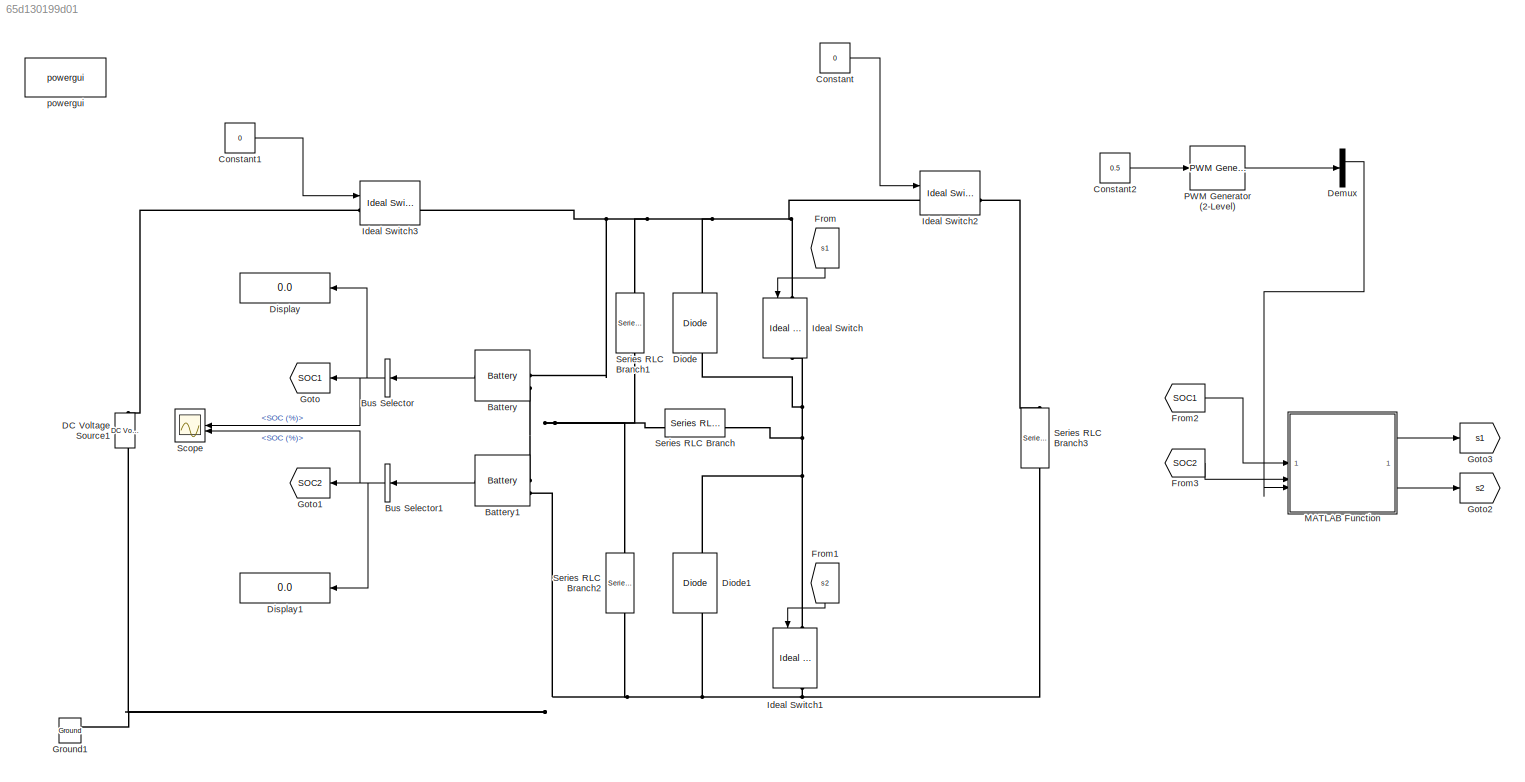
MODEL slx_65d130199d01
KIND model
CONFIG AbsTol = auto
CONFIG EnableMultiTasking = off
CONFIG FixedStep = auto
CONFIG MaxStep = auto
CONFIG MinStep = auto
CONFIG RelTol = 1e-3
CONFIG SampleTimeConstraint = Unconstrained
CONFIG SolverName = VariableStepAuto
CONFIG StartTime = 0.0
CONFIG StopTime = 20.0
BLOCK [Reference] Battery  REF=spsBatteryLib/Battery
  LibrarySourceBlock = sps_lib/Sources/Battery
  SourceBlock = spsBatteryLib/Battery
  SourceType = Battery
BLOCK [Reference] Battery1  REF=spsBatteryLib/Battery
  LibrarySourceBlock = sps_lib/Sources/Battery
  SourceBlock = spsBatteryLib/Battery
  SourceType = Battery
BLOCK [BusSelector] Bus Selector
  NameLocation = top
  OutputSignals = SOC (%)
BLOCK [BusSelector] Bus Selector1
  NameLocation = top
  OutputSignals = SOC (%)
BLOCK [Constant] Constant
  Value = 0
BLOCK [Constant] Constant1
  Value = 0
BLOCK [Constant] Constant2
  Value = 0.5
BLOCK [Reference] DC Voltage Source1  REF=spsDCVoltageSourceLib/DC Voltage Source
  LibrarySourceBlock = sps_lib/Sources/DC Voltage Source
  SourceBlock = spsDCVoltageSourceLib/DC Voltage Source
  SourceType = DC Voltage Source
BLOCK [Demux] Demux
  Outputs = 2
BLOCK [Reference] Diode  REF=spsDiodeLib/Diode
  LibrarySourceBlock = sps_lib/Power Electronics/Diode
  NameLocation = right
  SourceBlock = spsDiodeLib/Diode
  SourceType = Diode
BLOCK [Reference] Diode1  REF=spsDiodeLib/Diode
  LibrarySourceBlock = sps_lib/Power Electronics/Diode
  NameLocation = right
  SourceBlock = spsDiodeLib/Diode
  SourceType = Diode
BLOCK [Display] Display
  Decimation = 1
  NameLocation = top
BLOCK [Display] Display1
  Decimation = 1
  NameLocation = top
BLOCK [From] From
  GotoTag = s1
  NameLocation = left
BLOCK [From] From1
  GotoTag = s2
  NameLocation = left
BLOCK [From] From2
  GotoTag = SOC1
BLOCK [From] From3
  GotoTag = SOC2
BLOCK [Goto] Goto
  GotoTag = SOC1
  NameLocation = top
BLOCK [Goto] Goto1
  GotoTag = SOC2
  NameLocation = top
BLOCK [Goto] Goto2
  GotoTag = s2
BLOCK [Goto] Goto3
  GotoTag = s1
BLOCK [Reference] Ground1  REF=spsGroundLib/Ground
  LibrarySourceBlock = sps_lib/Utilities/Ground
  NameLocation = right
  SourceBlock = spsGroundLib/Ground
  SourceType = Ground
BLOCK [Reference] Ideal Switch  REF=spsIdealSwitchLib/Ideal Switch
  LibrarySourceBlock = sps_lib/Power Electronics/Ideal Switch
  NameLocation = left
  SourceBlock = spsIdealSwitchLib/Ideal Switch
  SourceType = Ideal Switch
BLOCK [Reference] Ideal Switch1  REF=spsIdealSwitchLib/Ideal Switch
  LibrarySourceBlock = sps_lib/Power Electronics/Ideal Switch
  NameLocation = left
  SourceBlock = spsIdealSwitchLib/Ideal Switch
  SourceType = Ideal Switch
BLOCK [Reference] Ideal Switch2  REF=spsIdealSwitchLib/Ideal Switch
  LibrarySourceBlock = sps_lib/Power Electronics/Ideal Switch
  SourceBlock = spsIdealSwitchLib/Ideal Switch
  SourceType = Ideal Switch
BLOCK [Reference] Ideal Switch3  REF=spsIdealSwitchLib/Ideal Switch
  LibrarySourceBlock = sps_lib/Power Electronics/Ideal Switch
  SourceBlock = spsIdealSwitchLib/Ideal Switch
  SourceType = Ideal Switch
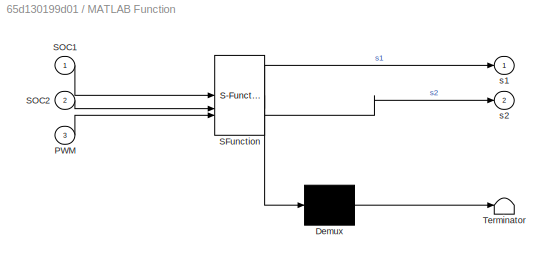
BLOCK [SubSystem] MATLAB Function
  ErrorFcn = Stateflow.Translate.translate
  LibrarySourceBlock = simulink/User-Defined\nFunctions/MATLAB Function
  PermitHierarchicalResolution = ExplicitOnly
  SFBlockType = MATLAB Function
  TreatAsAtomicUnit = on
BLOCK [Demux] MATLAB Function/ Demux 
  Outputs = 1
BLOCK [S-Function] MATLAB Function/ SFunction 
  EnableBusSupport = off
  FunctionName = sf_sfun
  PortCounts = [3 3]
  SFcnIsStateOwnerBlock = off
  SFunctionDeploymentMode = off
  Tag = Stateflow S-Function 2
BLOCK [Terminator] MATLAB Function/ Terminator 
BLOCK [Inport] MATLAB Function/PWM
  Port = 3
BLOCK [Inport] MATLAB Function/SOC1
BLOCK [Inport] MATLAB Function/SOC2
  Port = 2
BLOCK [Outport] MATLAB Function/s1
BLOCK [Outport] MATLAB Function/s2
  Port = 2
BLOCK [Reference] PWM Generator (2-Level)  REF=spsPWMGenerator2LevelLib/PWM Generator
(2-Level)
  LibrarySourceBlock = sps_lib/Power Electronics/Power Electronics Control/PWM Generator\n(2-Level)
  SourceBlock = spsPWMGenerator2LevelLib/PWM Generator\n(2-Level)
  SourceType = PWM Generator (2-Level)
BLOCK [Scope] Scope
  Floating = off
  NameLocation = top
  NumInputPorts = 2
  ScopeSpecificationString = Simulink.scopes.TimeScopeBlockCfg('CurrentConfiguration', extmgr.ConfigurationSet(extmgr.Configuration('Core','General UI',true),extmgr.Configuration('Core','Source UI',true),extmgr.Configuration('Sources','WiredSimulink',true),extmgr.Configuration('Visuals','Time Domain',true),extmgr.Configuration('Tools','Plot Navigation',true),extmgr.Configuration('Tools','Measurements',true,'Version','2023a'))...<+19ch>
BLOCK [Reference] Series RLC Branch  REF=spsSeriesRLCBranchLib/Series RLC Branch
  LibrarySourceBlock = sps_lib/Passives/Series RLC Branch
  SourceBlock = spsSeriesRLCBranchLib/Series RLC Branch
  SourceType = Series RLC Branch
BLOCK [Reference] Series RLC Branch1  REF=spsSeriesRLCBranchLib/Series RLC Branch
  LibrarySourceBlock = sps_lib/Passives/Series RLC Branch
  NameLocation = left
  SourceBlock = spsSeriesRLCBranchLib/Series RLC Branch
  SourceType = Series RLC Branch
BLOCK [Reference] Series RLC Branch2  REF=spsSeriesRLCBranchLib/Series RLC Branch
  LibrarySourceBlock = sps_lib/Passives/Series RLC Branch
  NameLocation = left
  SourceBlock = spsSeriesRLCBranchLib/Series RLC Branch
  SourceType = Series RLC Branch
BLOCK [Reference] Series RLC Branch3  REF=spsSeriesRLCBranchLib/Series RLC Branch
  LibrarySourceBlock = sps_lib/Passives/Series RLC Branch
  NameLocation = left
  SourceBlock = spsSeriesRLCBranchLib/Series RLC Branch
  SourceType = Series RLC Branch
BLOCK [Reference] powergui  REF=spspowerguiLib/powergui
  LibrarySourceBlock = sps_lib/powergui
  Priority = 1
  SourceBlock = spspowerguiLib/powergui
  SourceType = PSB option menu block
LINE Battery1:1 -> Bus Selector1:1
LINE Battery:1 -> Bus Selector:1
NET Bus Selector1:1 -> Display1:1, Goto1:1, Scope:2
NET Bus Selector:1 -> Display:1, Goto:1, Scope:1
LINE Constant1:1 -> Ideal Switch3:1
LINE Constant2:1 -> PWM Generator (2-Level):1
LINE Constant:1 -> Ideal Switch2:1
LINE Demux:1 -> MATLAB Function:3
LINE From1:1 -> Ideal Switch1:1
LINE From2:1 -> MATLAB Function:1
LINE From3:1 -> MATLAB Function:2
LINE From:1 -> Ideal Switch:1
LINE MATLAB Function:1 -> Goto3:1
LINE MATLAB Function:2 -> Goto2:1
LINE PWM Generator (2-Level):1 -> Demux:1
PNET net1: Battery1:LConn1 -- Battery:LConn2 -- Series RLC Branch1:RConn1 -- Series RLC Branch2:LConn1 -- Series RLC Branch:LConn1
PNET net2: Battery1:LConn2 -- DC Voltage Source1:LConn1 -- Diode1:LConn1 -- Ground1:LConn1 -- Ideal Switch1:RConn1 -- Series RLC Branch2:RConn1 -- Series RLC Branch3:RConn1
PNET net3: Battery:LConn1 -- Diode:RConn1 -- Ideal Switch2:LConn1 -- Ideal Switch3:RConn1 -- Ideal Switch:LConn1 -- Series RLC Branch1:LConn1
PLINE DC Voltage Source1:RConn1 -- Ideal Switch3:LConn1
PNET net4: Diode1:RConn1 -- Diode:LConn1 -- Ideal Switch1:LConn1 -- Ideal Switch:RConn1 -- Series RLC Branch:RConn1
PLINE Ideal Switch2:RConn1 -- Series RLC Branch3:LConn1
note: NET lines group one-source signal fan-out (src -> all destinations, sorted); 1:1 wires keep LINE; PNET lines group multi-terminal physical nets as a canonical sorted terminal list (undirected conserving connections); 2-terminal nets keep the pairwise PLINE form
CHART MATLAB Function states=1 transitions=1
  STATE_LABEL 'eML_blk_kernel()'
  STATE_LABEL 'SCRIPT:\nfunction [s1,s2] = fcn(SOC1,SOC2,PWM)\nif SOC2<SOC1\n    s1=PWM\n    s2=0\nelseif SOC1<SOC2\n    s1=0\n    s2=PWM\nelse\n    s1=0\n    s2=0\nend\n'
CHART  states=0 transitions=0
